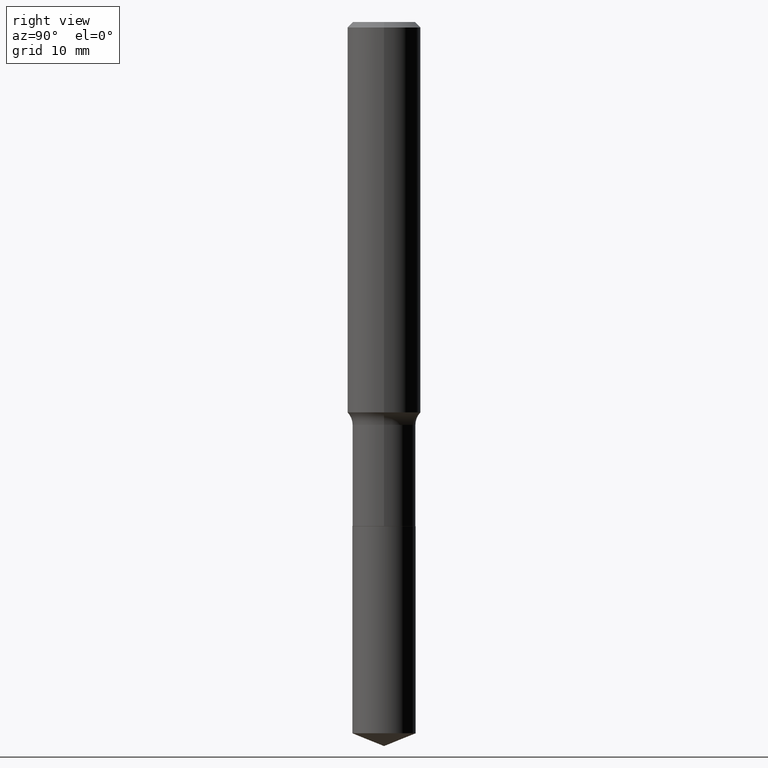
[diagram: clean part render]
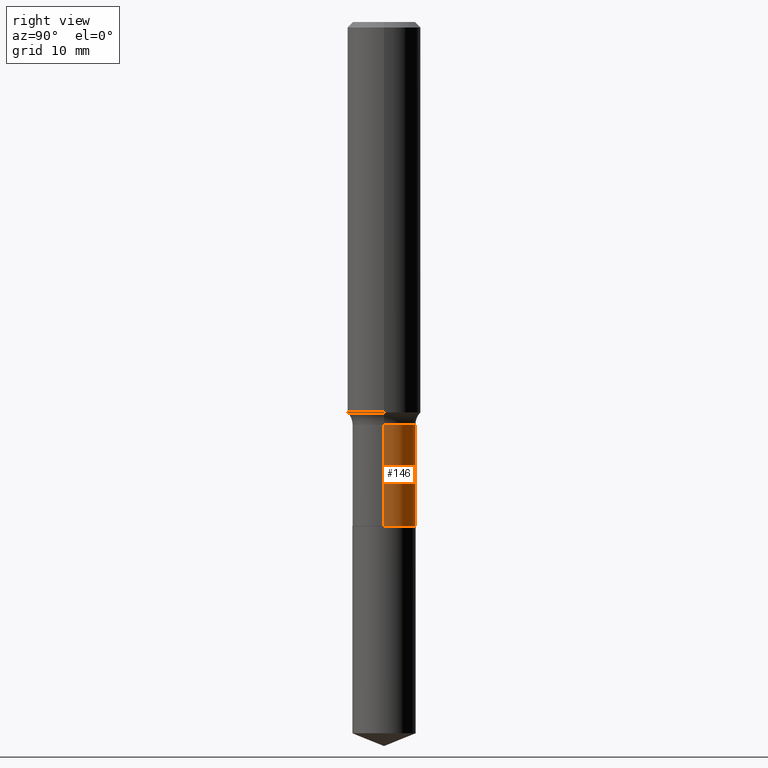
[diagram: same view with one face highlighted and labeled with its STEP entity id]
A machine part, right view. The second image highlights one B-rep face of the part: STEP entity #146.
In plain terms, the highlighted cylindrical surface (edge-blend (fillet) strip) has radius 3.4506 mm, axis along (-0, 0, 1).
Its self-contained STEP definition (entity closure, byte-faithful):
#11 = VERTEX_POINT ( 'NONE', #260 ) ;
#12 = FACE_OUTER_BOUND ( 'NONE', #369, .T. ) ;
#15 = ORIENTED_EDGE ( 'NONE', *, *, #45, .T. ) ;
#20 = DIRECTION ( 'NONE',  ( -2.445468806185136597E-29, 3.491481338843145583E-15, 1.000000000000000000 ) ) ;
#33 = CIRCLE ( 'NONE', #257, 0.1358499999999999985 ) ;
#40 = VECTOR ( 'NONE', #381, 39.37007874015748143 ) ;
#45 = EDGE_CURVE ( 'NONE', #164, #11, #33, .T. ) ;
#81 = DIRECTION ( 'NONE',  ( 1.000000000000000000, -6.982962677686264344E-15, 0.000000000000000000 ) ) ;
#110 = CARTESIAN_POINT ( 'NONE',  ( -0.1358499999999999708, 9.652723065300958949E-16, -6.682373320111287681E-30 ) ) ;
#112 = VECTOR ( 'NONE', #231, 39.37007874015748143 ) ;
#137 = AXIS2_PLACEMENT_3D ( 'NONE', #394, #390, #81 ) ;
#146 = ADVANCED_FACE ( 'NONE', ( #12 ), #168, .T. ) ;
#164 = VERTEX_POINT ( 'NONE', #448 ) ;
#168 = CYLINDRICAL_SURFACE ( 'NONE', #232, 0.1358499999999999708 ) ;
#192 = LINE ( 'NONE', #303, #112 ) ;
#205 = VERTEX_POINT ( 'NONE', #478 ) ;
#231 = DIRECTION ( 'NONE',  ( -2.445468806185136877E-29, 3.491481338843145188E-15, 1.000000000000000000 ) ) ;
#232 = AXIS2_PLACEMENT_3D ( 'NONE', #274, #20, #439 ) ;
#237 = ORIENTED_EDGE ( 'NONE', *, *, #459, .F. ) ;
#245 = VERTEX_POINT ( 'NONE', #445 ) ;
#257 = AXIS2_PLACEMENT_3D ( 'NONE', #475, #281, #400 ) ;
#260 = CARTESIAN_POINT ( 'NONE',  ( -0.1358499999999999985, -5.835435045268582804E-15, -2.164800000000000058 ) ) ;
#274 = CARTESIAN_POINT ( 'NONE',  ( 0.000000000000000000, 0.000000000000000000, 0.000000000000000000 ) ) ;
#275 = ORIENTED_EDGE ( 'NONE', *, *, #421, .F. ) ;
#281 = DIRECTION ( 'NONE',  ( -2.445468806185136597E-29, 3.491481338843145583E-15, 1.000000000000000000 ) ) ;
#302 = LINE ( 'NONE', #110, #40 ) ;
#303 = CARTESIAN_POINT ( 'NONE',  ( 0.1358499999999999708, -9.486354797636789603E-16, 6.624286149918776493E-30 ) ) ;
#331 = CIRCLE ( 'NONE', #137, 0.1358499999999999430 ) ;
#369 = EDGE_LOOP ( 'NONE', ( #15, #373, #237, #275 ) ) ;
#373 = ORIENTED_EDGE ( 'NONE', *, *, #427, .T. ) ;
#381 = DIRECTION ( 'NONE',  ( -2.445468806185136877E-29, 3.491481338843145188E-15, 1.000000000000000000 ) ) ;
#390 = DIRECTION ( 'NONE',  ( -2.445468806185136597E-29, 3.491481338843145583E-15, 1.000000000000000000 ) ) ;
#394 = CARTESIAN_POINT ( 'NONE',  ( 4.232617409745234548E-29, -6.043055901269716567E-15, -1.730800000000000116 ) ) ;
#400 = DIRECTION ( 'NONE',  ( 1.000000000000000000, -6.982962677686268288E-15, 0.000000000000000000 ) ) ;
#421 = EDGE_CURVE ( 'NONE', #164, #245, #192, .T. ) ;
#427 = EDGE_CURVE ( 'NONE', #11, #205, #302, .T. ) ;
#439 = DIRECTION ( 'NONE',  ( 1.000000000000000000, -6.982962677686265133E-15, 4.876176775795935232E-29 ) ) ;
#445 = CARTESIAN_POINT ( 'NONE',  ( 0.1358499999999999430, -6.991691381033394739E-15, -1.730800000000000116 ) ) ;
#448 = CARTESIAN_POINT ( 'NONE',  ( 0.1358499999999999985, -8.506994282091320579E-15, -2.164800000000000058 ) ) ;
#459 = EDGE_CURVE ( 'NONE', #245, #205, #331, .T. ) ;
#475 = CARTESIAN_POINT ( 'NONE',  ( 5.293950871629583880E-29, -7.558358802327641618E-15, -2.164800000000000058 ) ) ;
#478 = CARTESIAN_POINT ( 'NONE',  ( -0.1358499999999999430, -5.835435045268582804E-15, -1.730800000000000116 ) ) ;